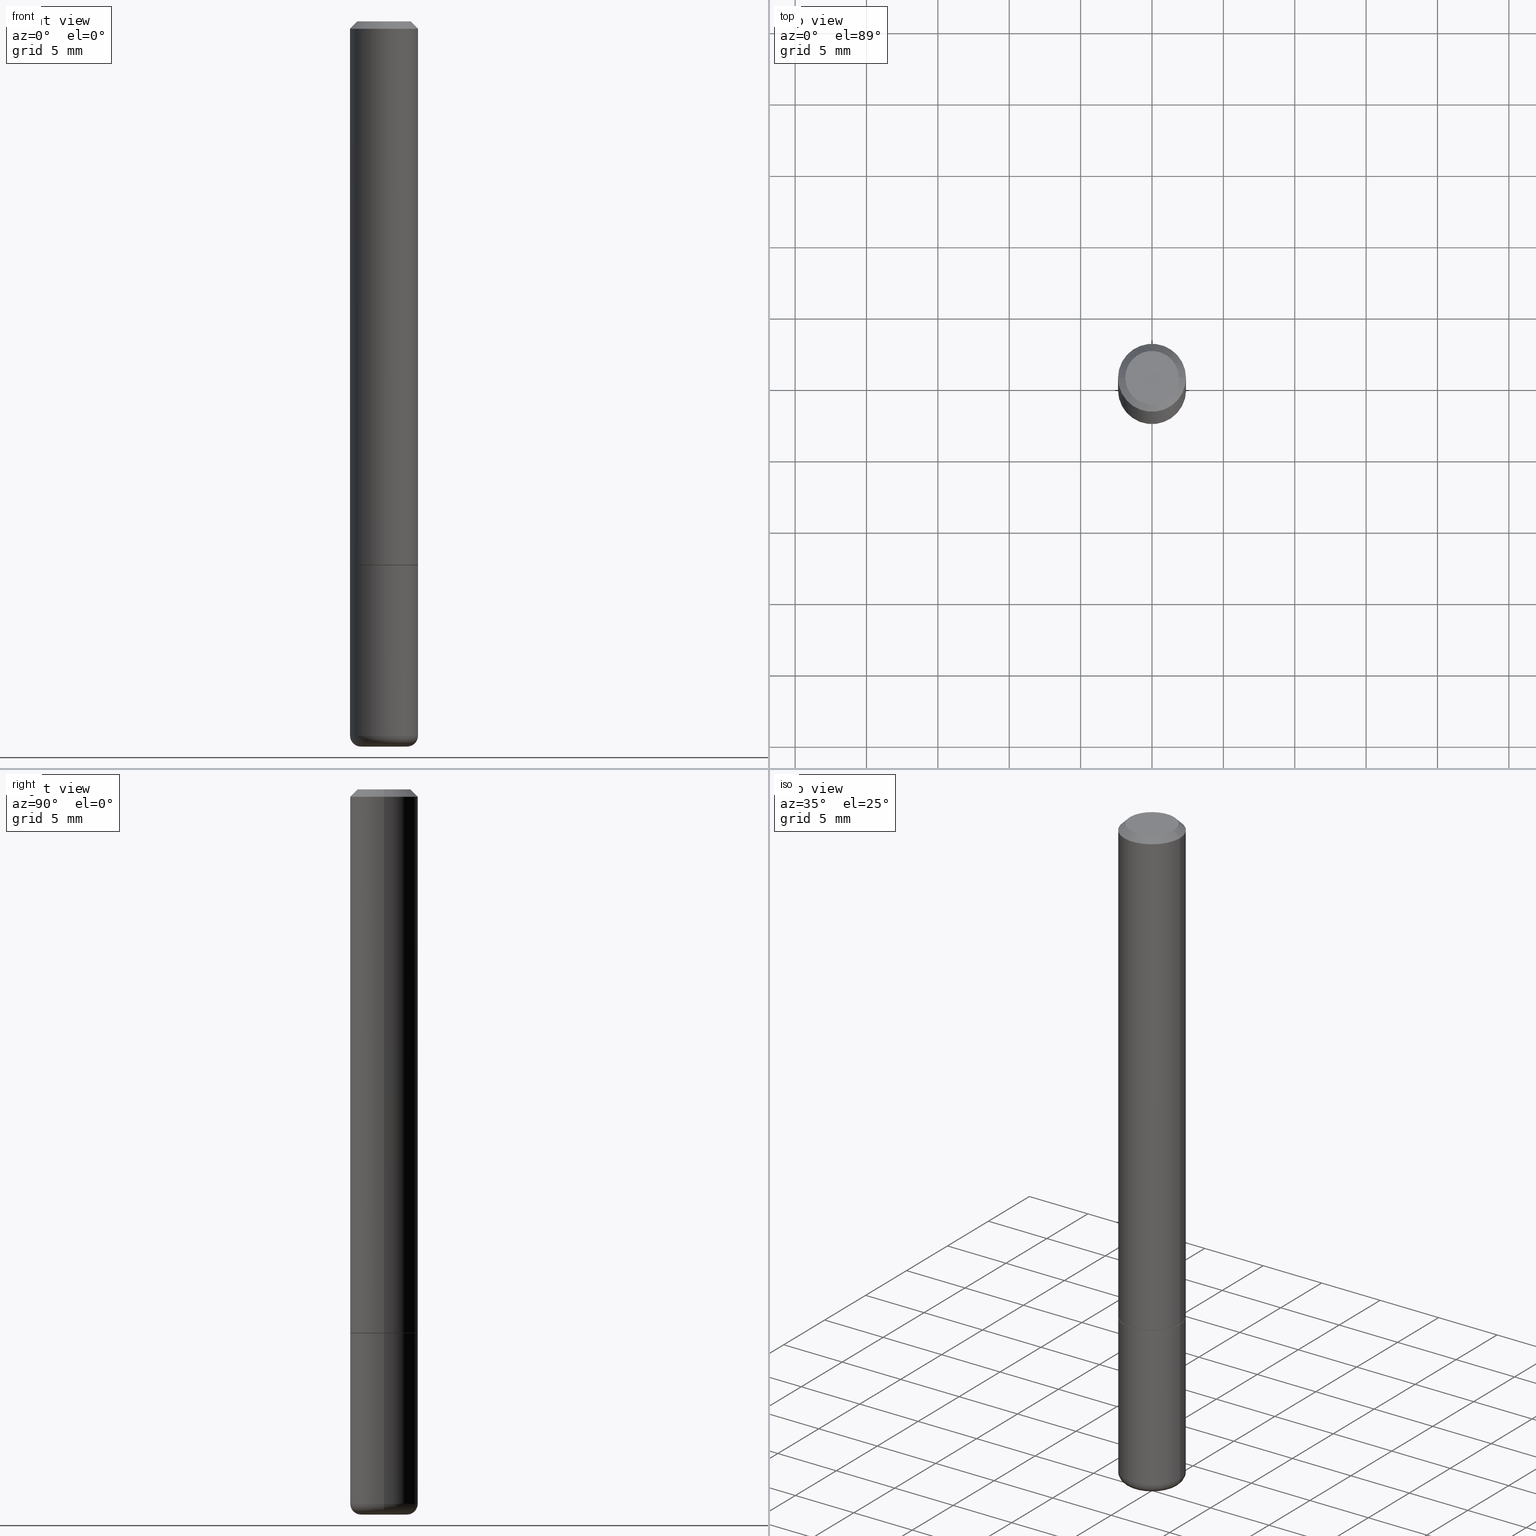
[diagram: canonical four-view strip — front | top / right | iso, engineering-drawing reading convention]
A machine part, canonical four-view strip (front | top / right | iso — engineering-drawing reading convention). The complete STEP part file that produces these views, byte-faithful:
ISO-10303-21;
HEADER;
FILE_DESCRIPTION (( 'STEP AP203' ),
    '1' );
FILE_NAME ('38784.STEP',
    '2024-03-03T12:39:34',
    ( '' ),
    ( '' ),
    'SwSTEP 2.0',
    'SolidWorks 2023',
    '' );
FILE_SCHEMA (( 'CONFIG_CONTROL_DESIGN' ));
ENDSEC;

DATA;
#1 = DIRECTION ( 'NONE',  ( -2.438088387897960049E-29, 3.491481338843145188E-15, 1.000000000000000000 ) ) ;
#2 = VERTEX_POINT ( 'NONE', #281 ) ;
#3 = CARTESIAN_POINT ( 'NONE',  ( 4.890937612370272633E-29, -6.982962677686290376E-15, -1.999999999999999778 ) ) ;
#4 = AXIS2_PLACEMENT_3D ( 'NONE', #337, #279, #54 ) ;
#5 = EDGE_CURVE ( 'NONE', #209, #166, #145, .T. ) ;
#6 = AXIS2_PLACEMENT_3D ( 'NONE', #203, #313, #345 ) ;
#7 = FACE_OUTER_BOUND ( 'NONE', #323, .T. ) ;
#8 = ADVANCED_FACE ( 'NONE', ( #245 ), #23, .T. ) ;
#9 = ORIENTED_EDGE ( 'NONE', *, *, #380, .T. ) ;
#10 = CARTESIAN_POINT ( 'NONE',  ( 0.000000000000000000, 0.000000000000000000, 0.000000000000000000 ) ) ;
#11 = ADVANCED_BREP_SHAPE_REPRESENTATION ( '38784', ( #307, #35, #119 ), #26 ) ;
#12 = AXIS2_PLACEMENT_3D ( 'NONE', #325, #112, #274 ) ;
#13 = LINE ( 'NONE', #271, #341 ) ;
#14 = CALENDAR_DATE ( 2024, 3, 3 ) ;
#15 = FACE_OUTER_BOUND ( 'NONE', #378, .T. ) ;
#16 = CARTESIAN_POINT ( 'NONE',  ( 0.06375000000000000111, -7.323382108223495405E-15, -1.969999999999999973 ) ) ;
#17 = EDGE_CURVE ( 'NONE', #2, #171, #328, .T. ) ;
#18 = CIRCLE ( 'NONE', #255, 0.09375000000000001388 ) ;
#19 = LOCAL_TIME ( 7, 39, 34.00000000000000000, #24 ) ;
#20 = CARTESIAN_POINT ( 'NONE',  ( 3.668203209277704335E-29, -5.237222008264717388E-15, -1.499999999999999778 ) ) ;
#21 = ADVANCED_FACE ( 'NONE', ( #305 ), #355, .T. ) ;
#22 = APPROVAL_STATUS ( 'not_yet_approved' ) ;
#23 = CYLINDRICAL_SURFACE ( 'NONE', #196, 0.09375000000000001388 ) ;
#24 = COORDINATED_UNIVERSAL_TIME_OFFSET ( 5, 0, .BEHIND. ) ;
#25 = CARTESIAN_POINT ( 'NONE',  ( 5.219257071676098903E-46, -7.451715851902235727E-32, -2.134256245050205639E-17 ) ) ;
#26 =( GEOMETRIC_REPRESENTATION_CONTEXT ( 3 ) GLOBAL_UNCERTAINTY_ASSIGNED_CONTEXT ( ( #156 ) ) GLOBAL_UNIT_ASSIGNED_CONTEXT ( ( #48, #111, #391 ) ) REPRESENTATION_CONTEXT ( 'NONE', 'WORKASPACE' ) );
#27 = LINE ( 'NONE', #137, #174 ) ;
#28 = CC_DESIGN_APPROVAL ( #103, ( #235 ) ) ;
#29 = DIRECTION ( 'NONE',  ( -2.445468806185136597E-29, 3.491481338843145583E-15, 1.000000000000000000 ) ) ;
#30 = CARTESIAN_POINT ( 'NONE',  ( 0.09274999999999998523, -5.884891796620118089E-15, -1.499999999999999778 ) ) ;
#31 = EDGE_CURVE ( 'NONE', #295, #201, #157, .T. ) ;
#32 = CARTESIAN_POINT ( 'NONE',  ( 3.668203209277704335E-29, -5.237222008264717388E-15, -1.499999999999999778 ) ) ;
#33 = AXIS2_PLACEMENT_3D ( 'NONE', #3, #172, #302 ) ;
#34 = EDGE_LOOP ( 'NONE', ( #83, #173, #418, #219 ) ) ;
#35 = MANIFOLD_SOLID_BREP ( 'Body-Move/Copy2[2]', #320 ) ;
#36 = CARTESIAN_POINT ( 'NONE',  ( 0.09375000000000020817, -5.888383277958964251E-15, -1.498999999999999666 ) ) ;
#37 = ORIENTED_EDGE ( 'NONE', *, *, #301, .T. ) ;
#38 = PERSON ( 'UNSPECIFIED', 'UNSPECIFIED', 'UNSPECIFIED', ('UNSPECIFIED'), ('UNSPECIFIED'), ('UNSPECIFIED') ) ;
#39 = APPLICATION_PROTOCOL_DEFINITION ( 'international standard', 'config_control_design', 1994, #253 ) ;
#40 = ORIENTED_EDGE ( 'NONE', *, *, #131, .F. ) ;
#41 = CARTESIAN_POINT ( 'NONE',  ( 0.06375000000000000111, -7.428126548388788775E-15, -1.999999999999999778 ) ) ;
#42 = ORIENTED_EDGE ( 'NONE', *, *, #90, .T. ) ;
#43 = CC_DESIGN_PERSON_AND_ORGANIZATION_ASSIGNMENT ( #282, #401, ( #235 ) ) ;
#44 = VECTOR ( 'NONE', #215, 39.37007874015748143 ) ;
#45 = VECTOR ( 'NONE', #417, 39.37007874015748854 ) ;
#46 = CARTESIAN_POINT ( 'NONE',  ( 0.09374999999999991673, -7.532870988554083722E-15, -1.969999999999999973 ) ) ;
#47 = ORIENTED_EDGE ( 'NONE', *, *, #190, .F. ) ;
#48 =( CONVERSION_BASED_UNIT ( 'INCH', #364 ) LENGTH_UNIT ( ) NAMED_UNIT ( #84 ) );
#49 = DIRECTION ( 'NONE',  ( -2.445468806185136597E-29, 3.491481338843145583E-15, 1.000000000000000000 ) ) ;
#50 = AXIS2_PLACEMENT_3D ( 'NONE', #20, #408, #370 ) ;
#51 = APPROVAL_PERSON_ORGANIZATION ( #125, #103, #149 ) ;
#52 = APPROVAL_DATE_TIME ( #152, #96 ) ;
#53 = DIRECTION ( 'NONE',  ( -1.000000000000000000, 7.105427357600993970E-15, 0.000000000000000000 ) ) ;
#54 = DIRECTION ( 'NONE',  ( 1.000000000000000000, -6.982962677686263555E-15, 4.883557194083111219E-29 ) ) ;
#55 = ADVANCED_FACE ( 'NONE', ( #15 ), #367, .T. ) ;
#56 = DATE_AND_TIME ( #121, #74 ) ;
#57 = DIRECTION ( 'NONE',  ( -2.445468806185136597E-29, 3.491481338843145583E-15, 1.000000000000000000 ) ) ;
#58 = APPROVAL ( #22, 'UNSPECIFIED' ) ;
#59 = DIRECTION ( 'NONE',  ( -2.445468806185136877E-29, 3.491481338843145188E-15, 1.000000000000000000 ) ) ;
#60 = PRODUCT_DEFINITION_SHAPE ( 'NONE', 'NONE',  #260 ) ;
#61 = CARTESIAN_POINT ( 'NONE',  ( 3.665757740471518732E-29, -5.233730526925875170E-15, -1.498999999999999666 ) ) ;
#62 = DIRECTION ( 'NONE',  ( 1.000000000000000000, -6.982962677686260400E-15, 0.000000000000000000 ) ) ;
#63 = AXIS2_PLACEMENT_3D ( 'NONE', #187, #306, #124 ) ;
#64 = AXIS2_PLACEMENT_3D ( 'NONE', #224, #289, #62 ) ;
#65 = CARTESIAN_POINT ( 'NONE',  ( 3.668203209277704335E-29, -5.237222008264717388E-15, -1.499999999999999778 ) ) ;
#66 = DIRECTION ( 'NONE',  ( -1.000000000000000000, 6.982962677686265922E-15, 0.000000000000000000 ) ) ;
#67 = CARTESIAN_POINT ( 'NONE',  ( -0.09375000000000001388, 5.848231242562245017E-16, -0.02000000000000001776 ) ) ;
#68 = EDGE_LOOP ( 'NONE', ( #47, #78 ) ) ;
#69 = CC_DESIGN_PERSON_AND_ORGANIZATION_ASSIGNMENT ( #407, #123, ( #260 ) ) ;
#70 = ORIENTED_EDGE ( 'NONE', *, *, #190, .T. ) ;
#71 = CARTESIAN_POINT ( 'NONE',  ( -0.07375000000000006550, 5.499083108677936415E-16, -2.134256245050577883E-17 ) ) ;
#72 = ORIENTED_EDGE ( 'NONE', *, *, #5, .F. ) ;
#73 = APPROVAL_PERSON_ORGANIZATION ( #86, #96, #115 ) ;
#74 = LOCAL_TIME ( 7, 39, 34.00000000000000000, #278 ) ;
#75 = EDGE_LOOP ( 'NONE', ( #40, #72, #150, #42 ) ) ;
#76 = CARTESIAN_POINT ( 'NONE',  ( 0.000000000000000000, 0.000000000000000000, 0.000000000000000000 ) ) ;
#77 = ADVANCED_FACE ( 'NONE', ( #147 ), #243, .F. ) ;
#78 = ORIENTED_EDGE ( 'NONE', *, *, #365, .F. ) ;
#79 = ORIENTED_EDGE ( 'NONE', *, *, #109, .F. ) ;
#80 = APPLICATION_CONTEXT ( 'configuration controlled 3d designs of mechanical parts and assemblies' ) ;
#81 = CIRCLE ( 'NONE', #229, 0.07375000000000006550 ) ;
#82 = CYLINDRICAL_SURFACE ( 'NONE', #12, 0.09375000000000011102 ) ;
#83 = ORIENTED_EDGE ( 'NONE', *, *, #167, .F. ) ;
#84 = DIMENSIONAL_EXPONENTS ( 1.000000000000000000, 0.000000000000000000, 0.000000000000000000, 0.000000000000000000, 0.000000000000000000, 0.000000000000000000, 0.000000000000000000 ) ;
#85 = ADVANCED_FACE ( 'NONE', ( #308 ), #388, .T. ) ;
#86 = PERSON_AND_ORGANIZATION ( #38, #99 ) ;
#87 = CIRCLE ( 'NONE', #64, 0.06375000000000000111 ) ;
#88 = CARTESIAN_POINT ( 'NONE',  ( 0.000000000000000000, 0.000000000000000000, 0.000000000000000000 ) ) ;
#89 = PERSON_AND_ORGANIZATION ( #38, #99 ) ;
#90 = EDGE_CURVE ( 'NONE', #270, #180, #239, .T. ) ;
#91 = CARTESIAN_POINT ( 'NONE',  ( 0.09375000000000001388, -7.130013140679441850E-16, -0.02000000000000001776 ) ) ;
#92 = CALENDAR_DATE ( 2024, 3, 3 ) ;
#93 = CARTESIAN_POINT ( 'NONE',  ( 1.087568822597644560E-28, 1.587540831848660629E-15, -2.000000000000000000 ) ) ;
#94 = LOCAL_TIME ( 7, 39, 34.00000000000000000, #188 ) ;
#95 = DIRECTION ( 'NONE',  ( -1.000000000000000000, 6.982962677686265922E-15, -4.876176775795935793E-29 ) ) ;
#96 = APPROVAL ( #366, 'UNSPECIFIED' ) ;
#97 = EDGE_LOOP ( 'NONE', ( #143, #9, #363, #178 ) ) ;
#98 = DIRECTION ( 'NONE',  ( -1.000000000000000000, 6.982962677686265922E-15, -4.876176775795935793E-29 ) ) ;
#99 = ORGANIZATION ( 'UNSPECIFIED', 'UNSPECIFIED', '' ) ;
#100 = CARTESIAN_POINT ( 'NONE',  ( 4.890937612370276662E-31, -6.982962677686296539E-17, -0.02000000000000001776 ) ) ;
#101 = EDGE_LOOP ( 'NONE', ( #70, #107, #273, #79 ) ) ;
#102 = CARTESIAN_POINT ( 'NONE',  ( 5.219257071676098903E-46, -7.451715851902235727E-32, -2.134256245050205639E-17 ) ) ;
#103 = APPROVAL ( #304, 'UNSPECIFIED' ) ;
#104 = ORIENTED_EDGE ( 'NONE', *, *, #377, .T. ) ;
#105 = DIRECTION ( 'NONE',  ( 1.000000000000000000, -6.982962677686265922E-15, 4.878439923190939118E-29 ) ) ;
#106 = DIRECTION ( 'NONE',  ( -2.445468806185136597E-29, 3.491481338843145583E-15, 1.000000000000000000 ) ) ;
#107 = ORIENTED_EDGE ( 'NONE', *, *, #17, .T. ) ;
#108 = CONICAL_SURFACE ( 'NONE', #405, 0.09274999999999998523, 0.7853981633975251064 ) ;
#109 = EDGE_CURVE ( 'NONE', #352, #390, #346, .T. ) ;
#110 = CYLINDRICAL_SURFACE ( 'NONE', #158, 0.09375000000000001388 ) ;
#111 =( NAMED_UNIT ( * ) PLANE_ANGLE_UNIT ( ) SI_UNIT ( $, .RADIAN. ) );
#112 = DIRECTION ( 'NONE',  ( -2.445468806185136597E-29, 3.491481338843145583E-15, 1.000000000000000000 ) ) ;
#113 = ORIENTED_EDGE ( 'NONE', *, *, #31, .F. ) ;
#114 = TOROIDAL_SURFACE ( 'NONE', #389, 0.06375000000000000111, 0.02999999999999984276 ) ;
#115 = APPROVAL_ROLE ( '' ) ;
#116 = PRODUCT ( '38784', '38784', '', ( #300 ) ) ;
#117 = COORDINATED_UNIVERSAL_TIME_OFFSET ( 5, 0, .BEHIND. ) ;
#118 = DIRECTION ( 'NONE',  ( 1.000000000000000000, -6.982962677686262766E-15, 0.000000000000000000 ) ) ;
#119 = AXIS2_PLACEMENT_3D ( 'NONE', #332, #230, #358 ) ;
#120 = ADVANCED_FACE ( 'NONE', ( #217 ), #340, .T. ) ;
#121 = CALENDAR_DATE ( 2024, 3, 3 ) ;
#122 = LINE ( 'NONE', #91, #44 ) ;
#123 = PERSON_AND_ORGANIZATION_ROLE ( 'creator' ) ;
#124 = DIRECTION ( 'NONE',  ( 1.000000000000000000, -6.982962677686265922E-15, 0.000000000000000000 ) ) ;
#125 = PERSON_AND_ORGANIZATION ( #38, #99 ) ;
#126 = DIRECTION ( 'NONE',  ( -1.000000000000000000, 6.982962677686265922E-15, 0.000000000000000000 ) ) ;
#127 = VECTOR ( 'NONE', #134, 39.37007874015748143 ) ;
#128 = CC_DESIGN_SECURITY_CLASSIFICATION ( #235, ( #249 ) ) ;
#129 = EDGE_LOOP ( 'NONE', ( #258, #394, #226, #184 ) ) ;
#130 = PLANE ( 'NONE',  #256 ) ;
#131 = EDGE_CURVE ( 'NONE', #166, #180, #122, .T. ) ;
#132 = CARTESIAN_POINT ( 'NONE',  ( -0.09375000000000001388, -5.391586308117763273E-15, -1.499999999999999778 ) ) ;
#133 = EDGE_CURVE ( 'NONE', #390, #312, #283, .T. ) ;
#134 = DIRECTION ( 'NONE',  ( -2.445468806185136877E-29, 3.491481338843145188E-15, 1.000000000000000000 ) ) ;
#135 = ORIENTED_EDGE ( 'NONE', *, *, #301, .F. ) ;
#136 = FACE_OUTER_BOUND ( 'NONE', #97, .T. ) ;
#137 = CARTESIAN_POINT ( 'NONE',  ( 0.09375000000000011102, -6.546527510330881944E-16, 4.571415727308695411E-30 ) ) ;
#138 = ORIENTED_EDGE ( 'NONE', *, *, #17, .F. ) ;
#139 = EDGE_CURVE ( 'NONE', #312, #327, #18, .T. ) ;
#140 = AXIS2_PLACEMENT_3D ( 'NONE', #165, #416, #319 ) ;
#141 = CARTESIAN_POINT ( 'NONE',  ( 3.668203209277704335E-29, -5.237222008264717388E-15, -1.499999999999999778 ) ) ;
#142 = DIRECTION ( 'NONE',  ( -2.445468806185136597E-29, 3.491481338843145583E-15, 1.000000000000000000 ) ) ;
#143 = ORIENTED_EDGE ( 'NONE', *, *, #311, .F. ) ;
#144 = CARTESIAN_POINT ( 'NONE',  ( 3.668203209277704335E-29, -5.237222008264717388E-15, -1.499999999999999778 ) ) ;
#145 = CIRCLE ( 'NONE', #163, 0.07375000000000006550 ) ;
#146 = DATE_TIME_ROLE ( 'classification_date' ) ;
#147 = FACE_OUTER_BOUND ( 'NONE', #360, .T. ) ;
#148 = EDGE_CURVE ( 'NONE', #209, #270, #220, .T. ) ;
#149 = APPROVAL_ROLE ( '' ) ;
#150 = ORIENTED_EDGE ( 'NONE', *, *, #148, .T. ) ;
#151 = PERSON_AND_ORGANIZATION ( #38, #99 ) ;
#152 = DATE_AND_TIME ( #92, #94 ) ;
#153 = ORIENTED_EDGE ( 'NONE', *, *, #393, .T. ) ;
#154 = COORDINATED_UNIVERSAL_TIME_OFFSET ( 5, 0, .BEHIND. ) ;
#155 = DIRECTION ( 'NONE',  ( -2.445468806185136597E-29, 3.491481338843145583E-15, 1.000000000000000000 ) ) ;
#156 = UNCERTAINTY_MEASURE_WITH_UNIT (LENGTH_MEASURE( 1.000000000000000082E-05 ), #48, 'distance_accuracy_value', 'NONE');
#157 = CIRCLE ( 'NONE', #248, 0.09375000000000020817 ) ;
#158 = AXIS2_PLACEMENT_3D ( 'NONE', #10, #142, #396 ) ;
#159 = FACE_OUTER_BOUND ( 'NONE', #268, .T. ) ;
#160 = CARTESIAN_POINT ( 'NONE',  ( 3.668203209277704335E-29, -5.237222008264717388E-15, -1.499999999999999778 ) ) ;
#161 = ADVANCED_FACE ( 'NONE', ( #159 ), #130, .F. ) ;
#162 = DIRECTION ( 'NONE',  ( -2.445468806185136597E-29, 3.491481338843145583E-15, 1.000000000000000000 ) ) ;
#163 = AXIS2_PLACEMENT_3D ( 'NONE', #25, #189, #342 ) ;
#164 = AXIS2_PLACEMENT_3D ( 'NONE', #144, #49, #398 ) ;
#165 = CARTESIAN_POINT ( 'NONE',  ( 4.817573548184719118E-29, -6.878218237520997007E-15, -1.969999999999999973 ) ) ;
#166 = VERTEX_POINT ( 'NONE', #386 ) ;
#167 = EDGE_CURVE ( 'NONE', #166, #209, #81, .T. ) ;
#168 = DIRECTION ( 'NONE',  ( 1.000000000000000000, -6.982962677686265922E-15, 0.000000000000000000 ) ) ;
#169 = ORIENTED_EDGE ( 'NONE', *, *, #377, .F. ) ;
#170 = DIRECTION ( 'NONE',  ( 1.000000000000000000, -6.982962677686268288E-15, 0.000000000000000000 ) ) ;
#171 = VERTEX_POINT ( 'NONE', #343 ) ;
#172 = DIRECTION ( 'NONE',  ( -2.445468806185136597E-29, 3.491481338843145583E-15, 1.000000000000000000 ) ) ;
#173 = ORIENTED_EDGE ( 'NONE', *, *, #131, .T. ) ;
#174 = VECTOR ( 'NONE', #350, 39.37007874015748143 ) ;
#175 = ORIENTED_EDGE ( 'NONE', *, *, #139, .T. ) ;
#176 = DIRECTION ( 'NONE',  ( -2.445468806185136597E-29, 3.491481338843145583E-15, 1.000000000000000000 ) ) ;
#177 = CC_DESIGN_DATE_AND_TIME_ASSIGNMENT ( #409, #146, ( #235 ) ) ;
#178 = ORIENTED_EDGE ( 'NONE', *, *, #90, .F. ) ;
#179 = FACE_OUTER_BOUND ( 'NONE', #263, .T. ) ;
#180 = VERTEX_POINT ( 'NONE', #287 ) ;
#181 = AXIS2_PLACEMENT_3D ( 'NONE', #193, #213, #126 ) ;
#182 = AXIS2_PLACEMENT_3D ( 'NONE', #76, #106, #298 ) ;
#183 = PERSON_AND_ORGANIZATION ( #38, #99 ) ;
#184 = ORIENTED_EDGE ( 'NONE', *, *, #237, .F. ) ;
#185 = EDGE_CURVE ( 'NONE', #180, #270, #309, .T. ) ;
#186 = ORIENTED_EDGE ( 'NONE', *, *, #133, .T. ) ;
#187 = CARTESIAN_POINT ( 'NONE',  ( 4.890937612370276662E-31, -6.982962677686296539E-17, -0.02000000000000001776 ) ) ;
#188 = COORDINATED_UNIVERSAL_TIME_OFFSET ( 5, 0, .BEHIND. ) ;
#189 = DIRECTION ( 'NONE',  ( -2.445468806185136597E-29, 3.491481338843145583E-15, 1.000000000000000000 ) ) ;
#190 = EDGE_CURVE ( 'NONE', #352, #2, #87, .T. ) ;
#191 = CIRCLE ( 'NONE', #334, 0.09274999999999998523 ) ;
#192 = CALENDAR_DATE ( 2024, 3, 3 ) ;
#193 = CARTESIAN_POINT ( 'NONE',  ( 4.890937612370276662E-31, -6.982962677686296539E-17, -0.02000000000000001776 ) ) ;
#194 = CARTESIAN_POINT ( 'NONE',  ( 0.09375000000000001388, -6.546527510330875041E-16, 4.571415727308690506E-30 ) ) ;
#195 = CARTESIAN_POINT ( 'NONE',  ( -0.09375000000000001388, 6.661338147750940229E-16, -4.611501647113973995E-30 ) ) ;
#196 = AXIS2_PLACEMENT_3D ( 'NONE', #88, #155, #335 ) ;
#197 = CIRCLE ( 'NONE', #234, 0.09375000000000020817 ) ;
#198 = DIRECTION ( 'NONE',  ( -2.445468806185136877E-29, 3.491481338843145188E-15, 1.000000000000000000 ) ) ;
#199 = DIRECTION ( 'NONE',  ( -0.7071067811865465735, 2.468850131082246805E-15, -0.7071067811865484609 ) ) ;
#200 = CARTESIAN_POINT ( 'NONE',  ( 0.09375000000000001388, -5.891874759297804892E-15, -1.499999999999999778 ) ) ;
#201 = VERTEX_POINT ( 'NONE', #353 ) ;
#202 = AXIS2_PLACEMENT_3D ( 'NONE', #100, #348, #66 ) ;
#203 = CARTESIAN_POINT ( 'NONE',  ( 4.817573548184719118E-29, -6.878218237520997007E-15, -1.969999999999999973 ) ) ;
#204 = VERTEX_POINT ( 'NONE', #30 ) ;
#205 = DIRECTION ( 'NONE',  ( 1.000000000000000000, -6.982962677686262766E-15, 0.000000000000000000 ) ) ;
#206 = ORIENTED_EDGE ( 'NONE', *, *, #5, .T. ) ;
#207 = CARTESIAN_POINT ( 'NONE',  ( 3.665757740471518732E-29, -5.233730526925875170E-15, -1.498999999999999666 ) ) ;
#208 = VECTOR ( 'NONE', #59, 39.37007874015748143 ) ;
#209 = VERTEX_POINT ( 'NONE', #71 ) ;
#210 = EDGE_CURVE ( 'NONE', #171, #327, #294, .T. ) ;
#211 = CC_DESIGN_PERSON_AND_ORGANIZATION_ASSIGNMENT ( #183, #374, ( #249 ) ) ;
#212 = APPROVAL_DATE_TIME ( #214, #58 ) ;
#213 = DIRECTION ( 'NONE',  ( 2.445468806185136597E-29, -3.491481338843145583E-15, -1.000000000000000000 ) ) ;
#214 = DATE_AND_TIME ( #14, #19 ) ;
#215 = DIRECTION ( 'NONE',  ( 0.7071067811865465735, -7.319954787623252890E-15, -0.7071067811865484609 ) ) ;
#216 = CALENDAR_DATE ( 2024, 3, 3 ) ;
#217 = FACE_OUTER_BOUND ( 'NONE', #68, .T. ) ;
#218 = LOCAL_TIME ( 7, 39, 34.00000000000000000, #154 ) ;
#219 = ORIENTED_EDGE ( 'NONE', *, *, #148, .F. ) ;
#220 = LINE ( 'NONE', #288, #369 ) ;
#221 = DIRECTION ( 'NONE',  ( 1.000000000000000000, -6.982962677686261189E-15, 0.000000000000000000 ) ) ;
#222 = AXIS2_PLACEMENT_3D ( 'NONE', #93, #406, #95 ) ;
#223 = CARTESIAN_POINT ( 'NONE',  ( -0.09274999999999998523, -4.578193620847224472E-15, -1.499999999999999778 ) ) ;
#224 = CARTESIAN_POINT ( 'NONE',  ( 4.890937612370272633E-29, -6.982962677686290376E-15, -1.999999999999999778 ) ) ;
#225 = EDGE_CURVE ( 'NONE', #171, #390, #321, .T. ) ;
#226 = ORIENTED_EDGE ( 'NONE', *, *, #185, .F. ) ;
#227 = DIRECTION ( 'NONE',  ( -2.445468806185136597E-29, 3.491481338843145583E-15, 1.000000000000000000 ) ) ;
#228 = EDGE_CURVE ( 'NONE', #251, #204, #276, .T. ) ;
#229 = AXIS2_PLACEMENT_3D ( 'NONE', #102, #382, #105 ) ;
#230 = DIRECTION ( 'NONE',  ( 0.000000000000000000, 0.000000000000000000, 1.000000000000000000 ) ) ;
#231 = EDGE_LOOP ( 'NONE', ( #138, #284, #359, #299 ) ) ;
#232 = DIRECTION ( 'NONE',  ( 1.000000000000000000, -6.982962677686263555E-15, 4.883557194083111219E-29 ) ) ;
#233 = CARTESIAN_POINT ( 'NONE',  ( 4.817573548184719118E-29, -6.878218237520997007E-15, -1.969999999999999973 ) ) ;
#234 = AXIS2_PLACEMENT_3D ( 'NONE', #207, #176, #170 ) ;
#235 = SECURITY_CLASSIFICATION ( '', '', #338 ) ;
#236 = DIRECTION ( 'NONE',  ( -2.445468806185136597E-29, 3.491481338843145583E-15, 1.000000000000000000 ) ) ;
#237 = EDGE_CURVE ( 'NONE', #295, #180, #27, .T. ) ;
#238 = APPLICATION_PROTOCOL_DEFINITION ( 'international standard', 'config_control_design', 1994, #80 ) ;
#239 = CIRCLE ( 'NONE', #63, 0.09375000000000001388 ) ;
#240 = CARTESIAN_POINT ( 'NONE',  ( -0.06375000000000000111, -6.425247243473933328E-15, -1.969999999999999973 ) ) ;
#241 = VECTOR ( 'NONE', #198, 39.37007874015748143 ) ;
#242 = PERSON_AND_ORGANIZATION_ROLE ( 'design_supplier' ) ;
#243 = PLANE ( 'NONE',  #50 ) ;
#244 = DATE_AND_TIME ( #192, #218 ) ;
#245 = FACE_OUTER_BOUND ( 'NONE', #266, .T. ) ;
#246 = SHAPE_DEFINITION_REPRESENTATION ( #60, #11 ) ;
#247 = CARTESIAN_POINT ( 'NONE',  ( 3.668203209277704335E-29, -5.237222008264717388E-15, -1.499999999999999778 ) ) ;
#248 = AXIS2_PLACEMENT_3D ( 'NONE', #61, #57, #402 ) ;
#249 = PRODUCT_DEFINITION_FORMATION_WITH_SPECIFIED_SOURCE ( 'ANY', '', #116, .NOT_KNOWN. ) ;
#250 = APPROVAL_PERSON_ORGANIZATION ( #399, #58, #368 ) ;
#251 = VERTEX_POINT ( 'NONE', #262 ) ;
#252 = PLANE ( 'NONE',  #315 ) ;
#253 = APPLICATION_CONTEXT ( 'configuration controlled 3d designs of mechanical parts and assemblies' ) ;
#254 = CARTESIAN_POINT ( 'NONE',  ( -0.09375000000000011102, 6.661338147750947131E-16, -4.611501647113979600E-30 ) ) ;
#255 = AXIS2_PLACEMENT_3D ( 'NONE', #411, #339, #221 ) ;
#256 = AXIS2_PLACEMENT_3D ( 'NONE', #160, #1, #259 ) ;
#257 = LINE ( 'NONE', #254, #241 ) ;
#258 = ORIENTED_EDGE ( 'NONE', *, *, #31, .T. ) ;
#259 = DIRECTION ( 'NONE',  ( 1.000000000000000000, -6.982962677686265922E-15, 4.876176775795935793E-29 ) ) ;
#260 = PRODUCT_DEFINITION ( 'UNKNOWN', '', #249, #272 ) ;
#261 = ORIENTED_EDGE ( 'NONE', *, *, #228, .T. ) ;
#262 = CARTESIAN_POINT ( 'NONE',  ( -0.09274999999999998523, -4.572895166499002070E-15, -1.499999999999999778 ) ) ;
#263 = EDGE_LOOP ( 'NONE', ( #351, #297, #186, #392 ) ) ;
#264 = AXIS2_PLACEMENT_3D ( 'NONE', #32, #29, #317 ) ;
#265 = DIRECTION ( 'NONE',  ( 0.7071067811866017516, -2.468850131082825040E-15, 0.7071067811864931718 ) ) ;
#266 = EDGE_LOOP ( 'NONE', ( #395, #373, #324, #384 ) ) ;
#267 = ADVANCED_FACE ( 'NONE', ( #322 ), #252, .F. ) ;
#268 = EDGE_LOOP ( 'NONE', ( #135, #331 ) ) ;
#269 = DIRECTION ( 'NONE',  ( -2.445468806185136597E-29, 3.491481338843145583E-15, 1.000000000000000000 ) ) ;
#270 = VERTEX_POINT ( 'NONE', #67 ) ;
#271 = CARTESIAN_POINT ( 'NONE',  ( 0.09274999999999998523, -5.884891796620118089E-15, -1.499999999999999778 ) ) ;
#272 = DESIGN_CONTEXT ( 'detailed design', #80, 'design' ) ;
#273 = ORIENTED_EDGE ( 'NONE', *, *, #275, .F. ) ;
#274 = DIRECTION ( 'NONE',  ( 1.000000000000000000, -6.982962677686265922E-15, 4.876176775795935793E-29 ) ) ;
#275 = EDGE_CURVE ( 'NONE', #390, #171, #361, .T. ) ;
#276 = CIRCLE ( 'NONE', #264, 0.09274999999999998523 ) ;
#277 = CYLINDRICAL_SURFACE ( 'NONE', #182, 0.09375000000000011102 ) ;
#278 = COORDINATED_UNIVERSAL_TIME_OFFSET ( 5, 0, .BEHIND. ) ;
#279 = DIRECTION ( 'NONE',  ( -2.445468806185136597E-29, 3.491481338843145583E-15, 1.000000000000000000 ) ) ;
#280 = DIRECTION ( 'NONE',  ( 7.105427357601001859E-15, 1.000000000000000000, -3.491481338843145583E-15 ) ) ;
#281 = CARTESIAN_POINT ( 'NONE',  ( -0.06375000000000000111, -6.371038053192565679E-15, -1.999999999999999778 ) ) ;
#282 = PERSON_AND_ORGANIZATION ( #38, #99 ) ;
#283 = LINE ( 'NONE', #194, #208 ) ;
#284 = ORIENTED_EDGE ( 'NONE', *, *, #365, .T. ) ;
#285 = CC_DESIGN_DATE_AND_TIME_ASSIGNMENT ( #244, #372, ( #260 ) ) ;
#286 = AXIS2_PLACEMENT_3D ( 'NONE', #247, #371, #118 ) ;
#287 = CARTESIAN_POINT ( 'NONE',  ( 0.09375000000000001388, -7.130013140679441850E-16, -0.02000000000000001776 ) ) ;
#288 = CARTESIAN_POINT ( 'NONE',  ( -0.09375000000000001388, 5.848231242562245017E-16, -0.02000000000000001776 ) ) ;
#289 = DIRECTION ( 'NONE',  ( -2.445468806185136597E-29, 3.491481338843145583E-15, 1.000000000000000000 ) ) ;
#290 = CIRCLE ( 'NONE', #164, 0.09375000000000001388 ) ;
#291 = CC_DESIGN_PERSON_AND_ORGANIZATION_ASSIGNMENT ( #151, #333, ( #116 ) ) ;
#292 = DIRECTION ( 'NONE',  ( 1.000000000000000000, -6.982962677686262766E-15, 0.000000000000000000 ) ) ;
#293 = ORIENTED_EDGE ( 'NONE', *, *, #167, .T. ) ;
#294 = LINE ( 'NONE', #195, #127 ) ;
#295 = VERTEX_POINT ( 'NONE', #36 ) ;
#296 = FACE_OUTER_BOUND ( 'NONE', #129, .T. ) ;
#297 = ORIENTED_EDGE ( 'NONE', *, *, #225, .T. ) ;
#298 = DIRECTION ( 'NONE',  ( 1.000000000000000000, -6.982962677686265922E-15, 4.876176775795935793E-29 ) ) ;
#299 = ORIENTED_EDGE ( 'NONE', *, *, #225, .F. ) ;
#300 = MECHANICAL_CONTEXT ( 'NONE', #253, 'mechanical' ) ;
#301 = EDGE_CURVE ( 'NONE', #204, #251, #191, .T. ) ;
#302 = DIRECTION ( 'NONE',  ( 1.000000000000000000, -6.982962677686260400E-15, 0.000000000000000000 ) ) ;
#303 = LOCAL_TIME ( 7, 39, 34.00000000000000000, #117 ) ;
#304 = APPROVAL_STATUS ( 'not_yet_approved' ) ;
#305 = FACE_OUTER_BOUND ( 'NONE', #34, .T. ) ;
#306 = DIRECTION ( 'NONE',  ( -2.445468806185136597E-29, 3.491481338843145583E-15, 1.000000000000000000 ) ) ;
#307 = MANIFOLD_SOLID_BREP ( 'Body-Move/Copy2[1]', #314 ) ;
#308 = FACE_OUTER_BOUND ( 'NONE', #231, .T. ) ;
#309 = CIRCLE ( 'NONE', #347, 0.09375000000000001388 ) ;
#310 = ORIENTED_EDGE ( 'NONE', *, *, #318, .T. ) ;
#311 = EDGE_CURVE ( 'NONE', #201, #270, #257, .T. ) ;
#312 = VERTEX_POINT ( 'NONE', #200 ) ;
#313 = DIRECTION ( 'NONE',  ( -2.445468806185136597E-29, 3.491481338843145583E-15, 1.000000000000000000 ) ) ;
#314 = CLOSED_SHELL ( 'NONE', ( #8, #415, #77, #400, #85, #120 ) ) ;
#315 = AXIS2_PLACEMENT_3D ( 'NONE', #414, #379, #98 ) ;
#316 = LINE ( 'NONE', #223, #45 ) ;
#317 = DIRECTION ( 'NONE',  ( 1.000000000000000000, -6.982962677686262766E-15, 0.000000000000000000 ) ) ;
#318 = EDGE_CURVE ( 'NONE', #251, #201, #316, .T. ) ;
#319 = DIRECTION ( 'NONE',  ( 1.000000000000000000, -6.982962677686261189E-15, 0.000000000000000000 ) ) ;
#320 = CLOSED_SHELL ( 'NONE', ( #55, #385, #21, #336, #344, #357, #161, #267 ) ) ;
#321 = CIRCLE ( 'NONE', #6, 0.09375000000000001388 ) ;
#322 = FACE_OUTER_BOUND ( 'NONE', #387, .T. ) ;
#323 = EDGE_LOOP ( 'NONE', ( #354, #261, #104, #326 ) ) ;
#324 = ORIENTED_EDGE ( 'NONE', *, *, #139, .F. ) ;
#325 = CARTESIAN_POINT ( 'NONE',  ( 0.000000000000000000, 0.000000000000000000, 0.000000000000000000 ) ) ;
#326 = ORIENTED_EDGE ( 'NONE', *, *, #380, .F. ) ;
#327 = VERTEX_POINT ( 'NONE', #132 ) ;
#328 = CIRCLE ( 'NONE', #375, 0.02999999999999984970 ) ;
#329 = CIRCLE ( 'NONE', #33, 0.06375000000000000111 ) ;
#330 = FACE_OUTER_BOUND ( 'NONE', #101, .T. ) ;
#331 = ORIENTED_EDGE ( 'NONE', *, *, #228, .F. ) ;
#332 = CARTESIAN_POINT ( 'NONE',  ( 0.000000000000000000, 0.000000000000000000, 0.000000000000000000 ) ) ;
#333 = PERSON_AND_ORGANIZATION_ROLE ( 'design_owner' ) ;
#334 = AXIS2_PLACEMENT_3D ( 'NONE', #65, #162, #292 ) ;
#335 = DIRECTION ( 'NONE',  ( 1.000000000000000000, -6.982962677686265922E-15, 4.876176775795935793E-29 ) ) ;
#336 = ADVANCED_FACE ( 'NONE', ( #381 ), #356, .T. ) ;
#337 = CARTESIAN_POINT ( 'NONE',  ( 4.817573548184719118E-29, -6.878218237520997007E-15, -1.969999999999999973 ) ) ;
#338 = SECURITY_CLASSIFICATION_LEVEL ( 'unclassified' ) ;
#339 = DIRECTION ( 'NONE',  ( -2.445468806185136597E-29, 3.491481338843145583E-15, 1.000000000000000000 ) ) ;
#340 = PLANE ( 'NONE',  #222 ) ;
#341 = VECTOR ( 'NONE', #265, 39.37007874015748854 ) ;
#342 = DIRECTION ( 'NONE',  ( 1.000000000000000000, -6.982962677686265922E-15, 4.878439923190939118E-29 ) ) ;
#343 = CARTESIAN_POINT ( 'NONE',  ( -0.09374999999999991673, -6.212084422745903871E-15, -1.969999999999999973 ) ) ;
#344 = ADVANCED_FACE ( 'NONE', ( #136 ), #82, .T. ) ;
#345 = DIRECTION ( 'NONE',  ( 1.000000000000000000, -6.982962677686261189E-15, 0.000000000000000000 ) ) ;
#346 = CIRCLE ( 'NONE', #403, 0.02999999999999984970 ) ;
#347 = AXIS2_PLACEMENT_3D ( 'NONE', #383, #227, #168 ) ;
#348 = DIRECTION ( 'NONE',  ( 2.445468806185136597E-29, -3.491481338843145583E-15, -1.000000000000000000 ) ) ;
#349 = CC_DESIGN_PERSON_AND_ORGANIZATION_ASSIGNMENT ( #89, #242, ( #249 ) ) ;
#350 = DIRECTION ( 'NONE',  ( -2.445468806185136877E-29, 3.491481338843145188E-15, 1.000000000000000000 ) ) ;
#351 = ORIENTED_EDGE ( 'NONE', *, *, #210, .F. ) ;
#352 = VERTEX_POINT ( 'NONE', #41 ) ;
#353 = CARTESIAN_POINT ( 'NONE',  ( -0.09375000000000020817, -1.985646262076270971E-15, -1.498999999999999666 ) ) ;
#354 = ORIENTED_EDGE ( 'NONE', *, *, #318, .F. ) ;
#355 = CONICAL_SURFACE ( 'NONE', #181, 0.09375000000000001388, 0.7853981633974469467 ) ;
#356 = CONICAL_SURFACE ( 'NONE', #202, 0.09375000000000001388, 0.7853981633974469467 ) ;
#357 = ADVANCED_FACE ( 'NONE', ( #7 ), #108, .T. ) ;
#358 = DIRECTION ( 'NONE',  ( 1.000000000000000000, 0.000000000000000000, 0.000000000000000000 ) ) ;
#359 = ORIENTED_EDGE ( 'NONE', *, *, #109, .T. ) ;
#360 = EDGE_LOOP ( 'NONE', ( #175, #153 ) ) ;
#361 = CIRCLE ( 'NONE', #140, 0.09375000000000001388 ) ;
#362 =( LENGTH_UNIT ( ) NAMED_UNIT ( * ) SI_UNIT ( $, .METRE. ) );
#363 = ORIENTED_EDGE ( 'NONE', *, *, #237, .T. ) ;
#364 = LENGTH_MEASURE_WITH_UNIT ( LENGTH_MEASURE( 0.02539999999999999897 ), #362 );
#365 = EDGE_CURVE ( 'NONE', #2, #352, #329, .T. ) ;
#366 = APPROVAL_STATUS ( 'not_yet_approved' ) ;
#367 = CONICAL_SURFACE ( 'NONE', #286, 0.09274999999999998523, 0.7853981633975251064 ) ;
#368 = APPROVAL_ROLE ( '' ) ;
#369 = VECTOR ( 'NONE', #199, 39.37007874015748143 ) ;
#370 = DIRECTION ( 'NONE',  ( -1.000000000000000000, 6.982962677686265922E-15, -4.876176775795935793E-29 ) ) ;
#371 = DIRECTION ( 'NONE',  ( -2.445468806185136597E-29, 3.491481338843145583E-15, 1.000000000000000000 ) ) ;
#372 = DATE_TIME_ROLE ( 'creation_date' ) ;
#373 = ORIENTED_EDGE ( 'NONE', *, *, #210, .T. ) ;
#374 = PERSON_AND_ORGANIZATION_ROLE ( 'creator' ) ;
#375 = AXIS2_PLACEMENT_3D ( 'NONE', #240, #280, #53 ) ;
#376 = DIRECTION ( 'NONE',  ( 1.000000000000000000, -6.982962677686271444E-15, 0.000000000000000000 ) ) ;
#377 = EDGE_CURVE ( 'NONE', #204, #295, #13, .T. ) ;
#378 = EDGE_LOOP ( 'NONE', ( #37, #310, #113, #169 ) ) ;
#379 = DIRECTION ( 'NONE',  ( 2.438088387897960049E-29, -3.491481338843145188E-15, -1.000000000000000000 ) ) ;
#380 = EDGE_CURVE ( 'NONE', #201, #295, #197, .T. ) ;
#381 = FACE_OUTER_BOUND ( 'NONE', #75, .T. ) ;
#382 = DIRECTION ( 'NONE',  ( -2.445468806185136597E-29, 3.491481338843145583E-15, 1.000000000000000000 ) ) ;
#383 = CARTESIAN_POINT ( 'NONE',  ( 4.890937612370276662E-31, -6.982962677686296539E-17, -0.02000000000000001776 ) ) ;
#384 = ORIENTED_EDGE ( 'NONE', *, *, #133, .F. ) ;
#385 = ADVANCED_FACE ( 'NONE', ( #296 ), #277, .T. ) ;
#386 = CARTESIAN_POINT ( 'NONE',  ( 0.07375000000000006550, -6.094815207017975989E-16, -2.134256245049812442E-17 ) ) ;
#387 = EDGE_LOOP ( 'NONE', ( #206, #293 ) ) ;
#388 = TOROIDAL_SURFACE ( 'NONE', #4, 0.06375000000000000111, 0.02999999999999984276 ) ;
#389 = AXIS2_PLACEMENT_3D ( 'NONE', #233, #236, #232 ) ;
#390 = VERTEX_POINT ( 'NONE', #46 ) ;
#391 =( NAMED_UNIT ( * ) SI_UNIT ( $, .STERADIAN. ) SOLID_ANGLE_UNIT ( ) );
#392 = ORIENTED_EDGE ( 'NONE', *, *, #393, .F. ) ;
#393 = EDGE_CURVE ( 'NONE', #327, #312, #290, .T. ) ;
#394 = ORIENTED_EDGE ( 'NONE', *, *, #311, .T. ) ;
#395 = ORIENTED_EDGE ( 'NONE', *, *, #275, .T. ) ;
#396 = DIRECTION ( 'NONE',  ( 1.000000000000000000, -6.982962677686265922E-15, 4.876176775795935793E-29 ) ) ;
#397 = CC_DESIGN_APPROVAL ( #58, ( #260 ) ) ;
#398 = DIRECTION ( 'NONE',  ( 1.000000000000000000, -6.982962677686261189E-15, 0.000000000000000000 ) ) ;
#399 = PERSON_AND_ORGANIZATION ( #38, #99 ) ;
#400 = ADVANCED_FACE ( 'NONE', ( #179 ), #110, .T. ) ;
#401 = PERSON_AND_ORGANIZATION_ROLE ( 'classification_officer' ) ;
#402 = DIRECTION ( 'NONE',  ( 1.000000000000000000, -6.982962677686268288E-15, 0.000000000000000000 ) ) ;
#403 = AXIS2_PLACEMENT_3D ( 'NONE', #16, #413, #376 ) ;
#404 = APPROVAL_DATE_TIME ( #56, #103 ) ;
#405 = AXIS2_PLACEMENT_3D ( 'NONE', #141, #269, #205 ) ;
#406 = DIRECTION ( 'NONE',  ( 2.438088387897960049E-29, -3.491481338843145188E-15, -1.000000000000000000 ) ) ;
#407 = PERSON_AND_ORGANIZATION ( #38, #99 ) ;
#408 = DIRECTION ( 'NONE',  ( 2.438088387897960049E-29, -3.491481338843145188E-15, -1.000000000000000000 ) ) ;
#409 = DATE_AND_TIME ( #216, #303 ) ;
#410 = PRODUCT_RELATED_PRODUCT_CATEGORY ( 'detail', '', ( #116 ) ) ;
#411 = CARTESIAN_POINT ( 'NONE',  ( 3.668203209277704335E-29, -5.237222008264717388E-15, -1.499999999999999778 ) ) ;
#412 = CC_DESIGN_APPROVAL ( #96, ( #249 ) ) ;
#413 = DIRECTION ( 'NONE',  ( -6.982962677686266711E-15, -1.000000000000000000, 3.491481338843145583E-15 ) ) ;
#414 = CARTESIAN_POINT ( 'NONE',  ( 5.149934974793625841E-16, 0.07375000000000006550, -2.681680299649332462E-16 ) ) ;
#415 = ADVANCED_FACE ( 'NONE', ( #330 ), #114, .T. ) ;
#416 = DIRECTION ( 'NONE',  ( -2.445468806185136597E-29, 3.491481338843145583E-15, 1.000000000000000000 ) ) ;
#417 = DIRECTION ( 'NONE',  ( -0.7071067811866017516, 7.493145998870549798E-15, 0.7071067811864931718 ) ) ;
#418 = ORIENTED_EDGE ( 'NONE', *, *, #185, .T. ) ;
ENDSEC;
END-ISO-10303-21;
